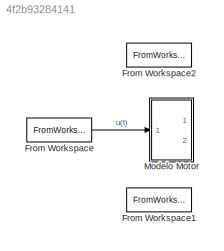
MODEL slx_4f2b93284141
KIND model
CONFIG AbsTol = auto
CONFIG EnableMultiTasking = off
CONFIG FixedStep = auto
CONFIG MaxStep = 1e-3
CONFIG MinStep = auto
CONFIG RelTol = 1e-3
CONFIG SampleTimeConstraint = Unconstrained
CONFIG Solver = VariableStepAuto
CONFIG SolverName = VariableStepAuto
CONFIG StartTime = 0.0
CONFIG StopTime = t(end)
BLOCK [FromWorkspace] From Workspace
  SampleTime = 0
  VariableName = Entrada
  ZeroCross = on
BLOCK [FromWorkspace] From Workspace1
  SampleTime = 0
  VariableName = Rot_real
  ZeroCross = on
BLOCK [FromWorkspace] From Workspace2
  SampleTime = 0
  VariableName = Pos_real
  ZeroCross = on
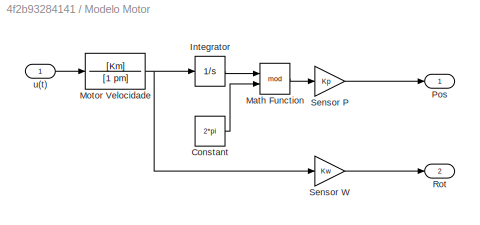
BLOCK [SubSystem] Modelo Motor
  Ports = [1, 2]
  RequestExecContextInheritance = off
BLOCK [Constant] Modelo Motor/Constant
  Value = 2*pi
BLOCK [Integrator] Modelo Motor/Integrator
  InitialCondition = I0
  Ports = [1, 1]
BLOCK [Math] Modelo Motor/Math Function
  Operator = mod
  Ports = [2, 1]
BLOCK [TransferFcn] Modelo Motor/Motor Velocidade
  Denominator = [1 pm]
  Numerator = [Km]
BLOCK [Outport] Modelo Motor/Pos 
  IconDisplay = Port number
BLOCK [Outport] Modelo Motor/Rot
  IconDisplay = Port number
  Port = 2
BLOCK [Gain] Modelo Motor/Sensor P
  Gain = Kp
  OutDataTypeStr = Inherit: Inherit via internal rule
  ParamDataTypeStr = Inherit: Inherit via internal rule
  SaturateOnIntegerOverflow = off
BLOCK [Gain] Modelo Motor/Sensor W
  Gain = Kw
  OutDataTypeStr = Inherit: Inherit via internal rule
  ParamDataTypeStr = Inherit: Inherit via internal rule
  SaturateOnIntegerOverflow = off
BLOCK [Inport] Modelo Motor/u(t) 
  IconDisplay = Port number
LINE From Workspace:1 -> Modelo Motor:1
LINE Modelo Motor/Constant:1 -> Modelo Motor/Math Function:2
LINE Modelo Motor/Integrator:1 -> Modelo Motor/Math Function:1
LINE Modelo Motor/Math Function:1 -> Modelo Motor/Sensor P:1
NET Modelo Motor/Motor Velocidade:1 -> Modelo Motor/Integrator:1, Modelo Motor/Sensor W:1
LINE Modelo Motor/Sensor P:1 -> Modelo Motor/Pos :1
LINE Modelo Motor/Sensor W:1 -> Modelo Motor/Rot:1
LINE Modelo Motor/u(t) :1 -> Modelo Motor/Motor Velocidade:1
note: NET lines group one-source signal fan-out (src -> all destinations, sorted); 1:1 wires keep LINE
